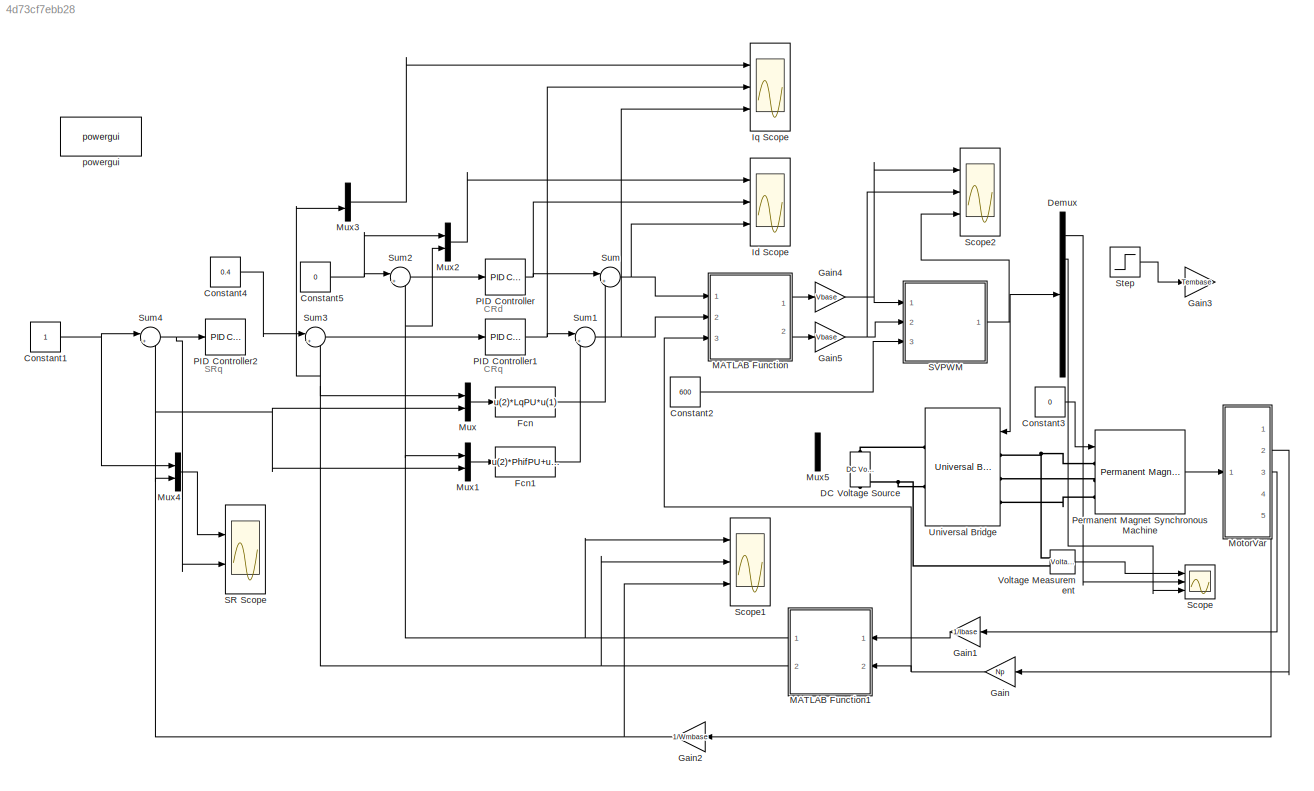
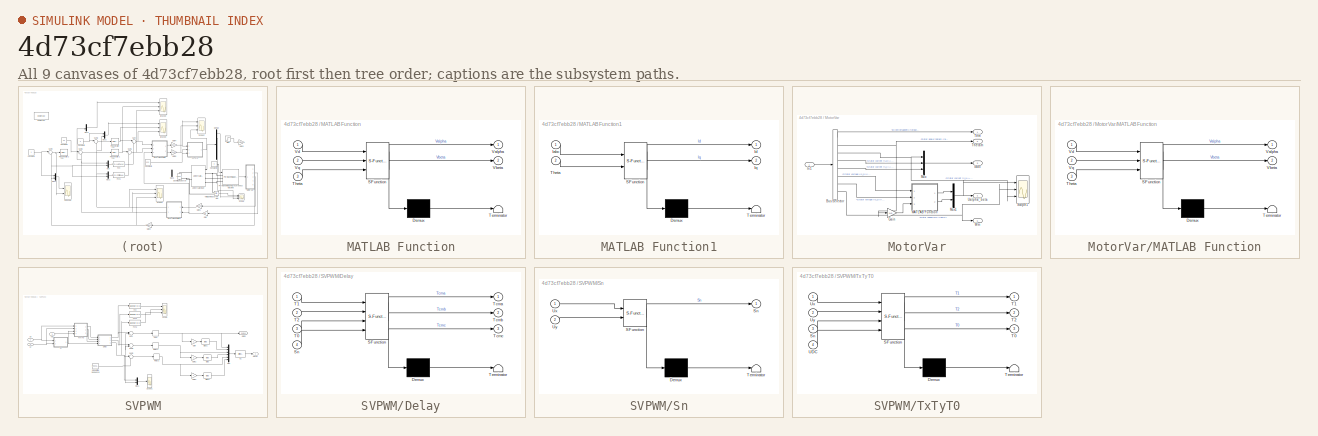
[diagram: thumbnail index - all 9 canvases of the model, root first then tree order]
MODEL slx_4d73cf7ebb28
KIND model
CONFIG AbsTol = auto
CONFIG EnableMultiTasking = off
CONFIG FixedStep = auto
CONFIG InitFcn = run('MotorParamInit_1_5PMSM.m');
CONFIG MaxStep = auto
CONFIG MinStep = auto
CONFIG RelTol = 1e-3
CONFIG SampleTimeConstraint = Unconstrained
CONFIG Solver = VariableStepAuto
CONFIG SolverName = VariableStepAuto
CONFIG StartTime = 0.0
CONFIG StopTime = 0.1
BLOCK [Constant] Constant1
BLOCK [Constant] Constant2
  Value = 600
BLOCK [Constant] Constant3
  Value = 0
BLOCK [Constant] Constant4
  Value = 0.4
BLOCK [Constant] Constant5
  Value = 0
BLOCK [Reference] DC Voltage Source  REF=powerlib/Electrical
Sources/DC Voltage Source
  Ports = [0, 0, 0, 0, 0, 1, 1]
  SourceBlock = powerlib/Electrical\nSources/DC Voltage Source
  SourceProductBaseCode = PS
  SourceProductName = Simscape Electrical
  SourceType = DC Voltage Source
BLOCK [Demux] Demux
  DisplayOption = bar
  Outputs = 6
  Ports = [1, 6]
BLOCK [Fcn] Fcn
  Expr = u(2)*LqPU*u(1)
BLOCK [Fcn] Fcn1
  Expr = u(2)*PhifPU+u(2)*LdPU*u(1)
BLOCK [Gain] Gain
  Gain = Np
  OutDataTypeStr = Inherit: Inherit via internal rule
  ParamDataTypeStr = Inherit: Inherit via internal rule
  SaturateOnIntegerOverflow = off
BLOCK [Gain] Gain1
  Gain = 1/Ibase
  OutDataTypeStr = Inherit: Inherit via internal rule
  ParamDataTypeStr = Inherit: Inherit via internal rule
  SaturateOnIntegerOverflow = off
BLOCK [Gain] Gain2
  Gain = 1/Wmbase
  OutDataTypeStr = Inherit: Inherit via internal rule
  ParamDataTypeStr = Inherit: Inherit via internal rule
  SaturateOnIntegerOverflow = off
BLOCK [Gain] Gain3
  Commented = on
  Gain = Tembase
  OutDataTypeStr = Inherit: Inherit via internal rule
  ParamDataTypeStr = Inherit: Inherit via internal rule
  SaturateOnIntegerOverflow = off
BLOCK [Gain] Gain4
  Gain = Vbase
  OutDataTypeStr = Inherit: Inherit via internal rule
  ParamDataTypeStr = Inherit: Inherit via internal rule
  SaturateOnIntegerOverflow = off
BLOCK [Gain] Gain5
  Gain = Vbase
  OutDataTypeStr = Inherit: Inherit via internal rule
  ParamDataTypeStr = Inherit: Inherit via internal rule
  SaturateOnIntegerOverflow = off
BLOCK [Scope] Id Scope
  Floating = off
  NumInputPorts = 3
  Ports = [3]
  ScopeSpecificationString = Simulink.scopes.TimeScopeBlockCfg('CurrentConfiguration', extmgr.ConfigurationSet(extmgr.Configuration('Core','General UI',true),extmgr.Configuration('Core','Source UI',true),extmgr.Configuration('Sources','WiredSimulink',true,'DataLoggingVariableName','ScopeData3'),extmgr.Configuration('Visuals','Time Domain',true,'SerializedDisplays',{struct('MinYLimReal','-0.06576','MaxYLimReal','0.07024','YLab...<+3066ch>
BLOCK [Scope] Iq Scope
  Floating = off
  NumInputPorts = 3
  Ports = [3]
  ScopeSpecificationString = Simulink.scopes.TimeScopeBlockCfg('CurrentConfiguration', extmgr.ConfigurationSet(extmgr.Configuration('Core','General UI',true),extmgr.Configuration('Core','Source UI',true),extmgr.Configuration('Sources','WiredSimulink',true,'DataLoggingVariableName','ScopeData2'),extmgr.Configuration('Visuals','Time Domain',true,'SerializedDisplays',{struct('MinYLimReal','-0.46773','MaxYLimReal','2.29201','YLab...<+3142ch>
BLOCK [SubSystem] MATLAB Function
  ErrorFcn = Stateflow.Translate.translate
  PermitHierarchicalResolution = ExplicitOnly
  Ports = [3, 2]
  RequestExecContextInheritance = off
  SFBlockType = MATLAB Function
  TreatAsAtomicUnit = on
BLOCK [Demux] MATLAB Function/ Demux 
  Outputs = 1
  Ports = [1, 1]
BLOCK [S-Function] MATLAB Function/ SFunction 
  EnableBusSupport = on
  FunctionName = sf_sfun
  PortCounts = [3 3]
  Ports = [3, 3]
  SFcnIsStateOwnerBlock = off
  SFunctionDeploymentMode = off
  Tag = Stateflow S-Function 2
BLOCK [Terminator] MATLAB Function/ Terminator 
BLOCK [Inport] MATLAB Function/Theta
  IconDisplay = Port number
  Port = 3
BLOCK [Outport] MATLAB Function/Valpha
  IconDisplay = Port number
BLOCK [Outport] MATLAB Function/Vbeta
  IconDisplay = Port number
  Port = 2
BLOCK [Inport] MATLAB Function/Vd
  IconDisplay = Port number
BLOCK [Inport] MATLAB Function/Vq
  IconDisplay = Port number
  Port = 2
BLOCK [SubSystem] MATLAB Function1
  ErrorFcn = Stateflow.Translate.translate
  PermitHierarchicalResolution = ExplicitOnly
  Ports = [2, 2]
  RequestExecContextInheritance = off
  SFBlockType = MATLAB Function
  TreatAsAtomicUnit = on
BLOCK [Demux] MATLAB Function1/ Demux 
  Outputs = 1
  Ports = [1, 1]
BLOCK [S-Function] MATLAB Function1/ SFunction 
  EnableBusSupport = on
  FunctionName = sf_sfun
  PortCounts = [2 3]
  Ports = [2, 3]
  SFcnIsStateOwnerBlock = off
  SFunctionDeploymentMode = off
  Tag = Stateflow S-Function 6
BLOCK [Terminator] MATLAB Function1/ Terminator 
BLOCK [Inport] MATLAB Function1/Iabc
  IconDisplay = Port number
BLOCK [Outport] MATLAB Function1/Id
  IconDisplay = Port number
BLOCK [Outport] MATLAB Function1/Iq
  IconDisplay = Port number
  Port = 2
BLOCK [Inport] MATLAB Function1/Theta
  IconDisplay = Port number
  Port = 2
BLOCK [SubSystem] MotorVar
  Ports = [1, 5]
  RequestExecContextInheritance = off
BLOCK [BusSelector] MotorVar/Bus Selector
  OutputAsBus = off
  OutputSignals = Electromagnetic torque Te (N*m),Rotor angle thetam (rad),Stator current is_a (A),Stator current is_b (A),Stator current is_c (A),Stator voltage Vs_d (V),Stator voltage Vs_q (V),Rotor speed wm (rad/s)
  Ports = [1, 8]
BLOCK [Gain] MotorVar/Gain
  Gain = Np
  OutDataTypeStr = Inherit: Inherit via internal rule
  ParamDataTypeStr = Inherit: Inherit via internal rule
  SaturateOnIntegerOverflow = off
BLOCK [Outport] MotorVar/Iabc
  IconDisplay = Port number
  Port = 3
BLOCK [Inport] MotorVar/In1
  IconDisplay = Port number
BLOCK [SubSystem] MotorVar/MATLAB Function
  ErrorFcn = Stateflow.Translate.translate
  PermitHierarchicalResolution = ExplicitOnly
  Ports = [3, 2]
  RequestExecContextInheritance = off
  SFBlockType = MATLAB Function
  TreatAsAtomicUnit = on
BLOCK [Demux] MotorVar/MATLAB Function/ Demux 
  Outputs = 1
  Ports = [1, 1]
BLOCK [S-Function] MotorVar/MATLAB Function/ SFunction 
  EnableBusSupport = on
  FunctionName = sf_sfun
  PortCounts = [3 3]
  Ports = [3, 3]
  SFcnIsStateOwnerBlock = off
  SFunctionDeploymentMode = off
  Tag = Stateflow S-Function 5
BLOCK [Terminator] MotorVar/MATLAB Function/ Terminator 
BLOCK [Inport] MotorVar/MATLAB Function/Theta
  IconDisplay = Port number
  Port = 3
BLOCK [Outport] MotorVar/MATLAB Function/Valpha
  IconDisplay = Port number
BLOCK [Outport] MotorVar/MATLAB Function/Vbeta
  IconDisplay = Port number
  Port = 2
BLOCK [Inport] MotorVar/MATLAB Function/Vd
  IconDisplay = Port number
BLOCK [Inport] MotorVar/MATLAB Function/Vq
  IconDisplay = Port number
  Port = 2
BLOCK [Mux] MotorVar/Mux
  DisplayOption = bar
  Inputs = 3
  Ports = [3, 1]
BLOCK [Mux] MotorVar/Mux1
  DisplayOption = bar
  Inputs = 2
  Ports = [2, 1]
BLOCK [Scope] MotorVar/Scope1
  Floating = off
  NumInputPorts = 3
  Ports = [3]
  ScopeSpecificationString = Simulink.scopes.TimeScopeBlockCfg('CurrentConfiguration', extmgr.ConfigurationSet(extmgr.Configuration('Core','General UI',true),extmgr.Configuration('Core','Source UI',true),extmgr.Configuration('Sources','WiredSimulink',true,'DataLoggingVariableName','ScopeData4'),extmgr.Configuration('Visuals','Time Domain',true,'SerializedDisplays',{struct('MinYLimReal','-500.00276','MaxYLimReal','500.0026','Y...<+3269ch>
BLOCK [Outport] MotorVar/Tem
  IconDisplay = Port number
BLOCK [Outport] MotorVar/Thetam
  IconDisplay = Port number
  Port = 2
BLOCK [Outport] MotorVar/Ualpha_beta
  IconDisplay = Port number
  Port = 4
BLOCK [Outport] MotorVar/Wm
  IconDisplay = Port number
  Port = 5
BLOCK [Mux] Mux
  DisplayOption = bar
  Inputs = 2
  Ports = [2, 1]
BLOCK [Mux] Mux1
  DisplayOption = bar
  Inputs = 2
  Ports = [2, 1]
BLOCK [Mux] Mux2
  DisplayOption = bar
  Inputs = 2
  Ports = [2, 1]
BLOCK [Mux] Mux3
  DisplayOption = bar
  Inputs = 2
  Ports = [2, 1]
BLOCK [Mux] Mux4
  DisplayOption = bar
  Inputs = 2
  Ports = [2, 1]
BLOCK [Mux] Mux5
  DisplayOption = bar
  Inputs = 2
  Ports = [2, 1]
BLOCK [Reference] PID Controller  REF=simulink/Continuous/PID Controller
  Ports = [1, 1]
  SourceBlock = simulink/Continuous/PID Controller
  SourceProductBaseCode = SL
  SourceProductName = Simulink
  SourceType = PID 1dof
BLOCK [Reference] PID Controller1  REF=simulink/Continuous/PID Controller
  Ports = [1, 1]
  SourceBlock = simulink/Continuous/PID Controller
  SourceProductBaseCode = SL
  SourceProductName = Simulink
  SourceType = PID 1dof
BLOCK [Reference] PID Controller2  REF=simulink/Continuous/PID Controller
  Ports = [1, 1]
  SourceBlock = simulink/Continuous/PID Controller
  SourceProductBaseCode = SL
  SourceProductName = Simulink
  SourceType = PID 1dof
BLOCK [Reference] Permanent Magnet Synchronous Machine  REF=powerlib/Machines/Permanent Magnet
Synchronous Machine
  Ports = [1, 1, 0, 0, 0, 3]
  SourceBlock = powerlib/Machines/Permanent Magnet\nSynchronous Machine
  SourceProductBaseCode = PS
  SourceProductName = Simscape Electrical
  SourceType = Permanent Magnet Synchronous Machine
BLOCK [Scope] SR Scope
  Floating = off
  NumInputPorts = 2
  Ports = [2]
  ScopeSpecificationString = Simulink.scopes.TimeScopeBlockCfg('CurrentConfiguration', extmgr.ConfigurationSet(extmgr.Configuration('Core','General UI',true,'FigureColor',[0 0 0]),extmgr.Configuration('Core','Source UI',true),extmgr.Configuration('Sources','WiredSimulink',true,'DataLoggingVariableName','VerifySRData','DataLogging',true),extmgr.Configuration('Visuals','Time Domain',true,'SerializedDisplays',{struct('MinYLimRea...<+2383ch>
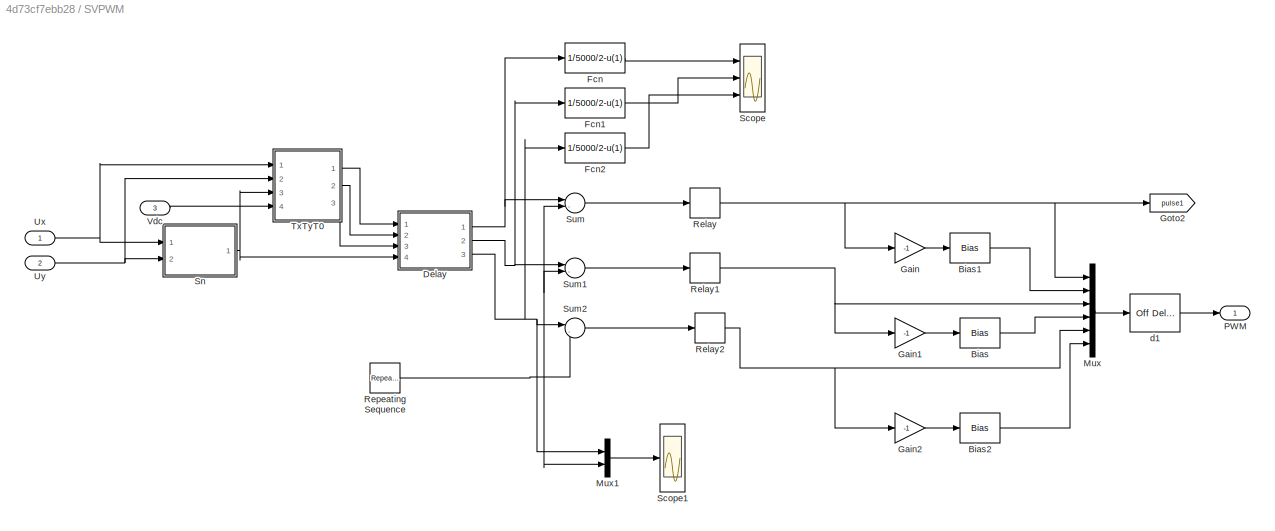
BLOCK [SubSystem] SVPWM
  Ports = [3, 1]
  RequestExecContextInheritance = off
BLOCK [Bias] SVPWM/Bias
  Bias = 1
  SaturateOnIntegerOverflow = off
BLOCK [Bias] SVPWM/Bias1
  Bias = 1
  SaturateOnIntegerOverflow = off
BLOCK [Bias] SVPWM/Bias2
  Bias = 1
  SaturateOnIntegerOverflow = off
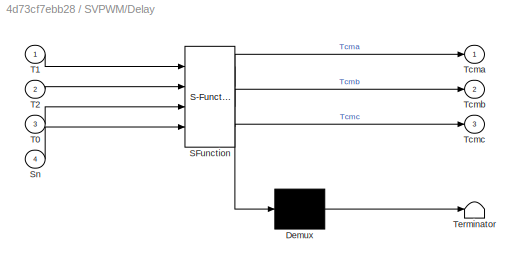
BLOCK [SubSystem] SVPWM/Delay
  ErrorFcn = Stateflow.Translate.translate
  PermitHierarchicalResolution = ExplicitOnly
  Ports = [4, 3]
  RequestExecContextInheritance = off
  SFBlockType = MATLAB Function
  TreatAsAtomicUnit = on
BLOCK [Demux] SVPWM/Delay/ Demux 
  Outputs = 1
  Ports = [1, 1]
BLOCK [S-Function] SVPWM/Delay/ SFunction 
  EnableBusSupport = on
  FunctionName = sf_sfun
  PortCounts = [4 4]
  Ports = [4, 4]
  SFcnIsStateOwnerBlock = off
  SFunctionDeploymentMode = off
  Tag = Stateflow S-Function 4
BLOCK [Terminator] SVPWM/Delay/ Terminator 
BLOCK [Inport] SVPWM/Delay/Sn
  IconDisplay = Port number
  Port = 4
BLOCK [Inport] SVPWM/Delay/T0
  IconDisplay = Port number
  Port = 3
BLOCK [Inport] SVPWM/Delay/T1
  IconDisplay = Port number
BLOCK [Inport] SVPWM/Delay/T2
  IconDisplay = Port number
  Port = 2
BLOCK [Outport] SVPWM/Delay/Tcma
  IconDisplay = Port number
BLOCK [Outport] SVPWM/Delay/Tcmb
  IconDisplay = Port number
  Port = 2
BLOCK [Outport] SVPWM/Delay/Tcmc
  IconDisplay = Port number
  Port = 3
BLOCK [Fcn] SVPWM/Fcn
  Expr = 1/5000/2-u(1)
BLOCK [Fcn] SVPWM/Fcn1
  Expr = 1/5000/2-u(1)
BLOCK [Fcn] SVPWM/Fcn2
  Expr = 1/5000/2-u(1)
BLOCK [Gain] SVPWM/Gain
  Gain = -1
  OutDataTypeStr = Inherit: Inherit via internal rule
  ParamDataTypeStr = Inherit: Inherit via internal rule
  SaturateOnIntegerOverflow = off
BLOCK [Gain] SVPWM/Gain1
  Gain = -1
  OutDataTypeStr = Inherit: Inherit via internal rule
  ParamDataTypeStr = Inherit: Inherit via internal rule
  SaturateOnIntegerOverflow = off
BLOCK [Gain] SVPWM/Gain2
  Gain = -1
  OutDataTypeStr = Inherit: Inherit via internal rule
  ParamDataTypeStr = Inherit: Inherit via internal rule
  SaturateOnIntegerOverflow = off
BLOCK [Goto] SVPWM/Goto2
  Commented = on
  GotoTag = pulse1
  TagVisibility = global
BLOCK [Mux] SVPWM/Mux
  DisplayOption = bar
  Inputs = 6
  Ports = [6, 1]
BLOCK [Mux] SVPWM/Mux1
  DisplayOption = bar
  Inputs = 2
  Ports = [2, 1]
BLOCK [Outport] SVPWM/PWM
  IconDisplay = Port number
BLOCK [Relay] SVPWM/Relay
  OffSwitchValue = 0
  OnSwitchValue = 0
BLOCK [Relay] SVPWM/Relay1
  OffSwitchValue = 0
  OnSwitchValue = 0
BLOCK [Relay] SVPWM/Relay2
  OffSwitchValue = 0
  OnSwitchValue = 0
BLOCK [Reference] SVPWM/Repeating Sequence  REF=simulink/Sources/Repeating
Sequence
  Ports = [0, 1]
  SourceBlock = simulink/Sources/Repeating\nSequence
  SourceProductBaseCode = SL
  SourceProductName = Simulink
  SourceType = Repeating table
BLOCK [Scope] SVPWM/Scope
  Floating = off
  NumInputPorts = 3
  Ports = [3]
  ScopeSpecificationString = Simulink.scopes.TimeScopeBlockCfg('CurrentConfiguration', extmgr.ConfigurationSet(extmgr.Configuration('Core','General UI',true),extmgr.Configuration('Core','Source UI',true),extmgr.Configuration('Sources','WiredSimulink',true,'DataLoggingVariableName','ScopeData5'),extmgr.Configuration('Visuals','Time Domain',true,'SerializedDisplays',{struct('MinYLimReal','-0.00000','MaxYLimReal','0.0001','YLabe...<+2838ch>
BLOCK [Scope] SVPWM/Scope1
  Floating = off
  NumInputPorts = 1
  Ports = [1]
  ScopeSpecificationString = Simulink.scopes.TimeScopeBlockCfg('CurrentConfiguration', extmgr.ConfigurationSet(extmgr.Configuration('Core','General UI',true),extmgr.Configuration('Core','Source UI',true),extmgr.Configuration('Sources','WiredSimulink',true,'DataLoggingVariableName','ScopeData1'),extmgr.Configuration('Visuals','Time Domain',true,'SerializedDisplays',{struct('MinYLimReal','-0.00002','MaxYLimReal','0.0001','YLabe...<+1786ch>
BLOCK [SubSystem] SVPWM/Sn
  ErrorFcn = Stateflow.Translate.translate
  PermitHierarchicalResolution = ExplicitOnly
  Ports = [2, 1]
  RequestExecContextInheritance = off
  SFBlockType = MATLAB Function
  TreatAsAtomicUnit = on
BLOCK [Demux] SVPWM/Sn/ Demux 
  Outputs = 1
  Ports = [1, 1]
BLOCK [S-Function] SVPWM/Sn/ SFunction 
  EnableBusSupport = on
  FunctionName = sf_sfun
  PortCounts = [2 2]
  Ports = [2, 2]
  SFcnIsStateOwnerBlock = off
  SFunctionDeploymentMode = off
  Tag = Stateflow S-Function 1
BLOCK [Terminator] SVPWM/Sn/ Terminator 
BLOCK [Outport] SVPWM/Sn/Sn
  IconDisplay = Port number
BLOCK [Inport] SVPWM/Sn/Ux
  IconDisplay = Port number
BLOCK [Inport] SVPWM/Sn/Uy
  IconDisplay = Port number
  Port = 2
BLOCK [Sum] SVPWM/Sum
  IconShape = round
  InputSameDT = off
  Inputs = |-+
  OutDataTypeStr = Inherit: Inherit via internal rule
  Ports = [2, 1]
  SaturateOnIntegerOverflow = off
BLOCK [Sum] SVPWM/Sum1
  IconShape = round
  InputSameDT = off
  Inputs = |-+
  OutDataTypeStr = Inherit: Inherit via internal rule
  Ports = [2, 1]
  SaturateOnIntegerOverflow = off
BLOCK [Sum] SVPWM/Sum2
  IconShape = round
  InputSameDT = off
  Inputs = |-+
  OutDataTypeStr = Inherit: Inherit via internal rule
  Ports = [2, 1]
  SaturateOnIntegerOverflow = off
BLOCK [SubSystem] SVPWM/TxTyT0
  ErrorFcn = Stateflow.Translate.translate
  PermitHierarchicalResolution = ExplicitOnly
  Ports = [4, 3]
  RequestExecContextInheritance = off
  SFBlockType = MATLAB Function
  TreatAsAtomicUnit = on
BLOCK [Demux] SVPWM/TxTyT0/ Demux 
  Outputs = 1
  Ports = [1, 1]
BLOCK [S-Function] SVPWM/TxTyT0/ SFunction 
  EnableBusSupport = on
  FunctionName = sf_sfun
  PortCounts = [4 4]
  Ports = [4, 4]
  SFcnIsStateOwnerBlock = off
  SFunctionDeploymentMode = off
  Tag = Stateflow S-Function 3
BLOCK [Terminator] SVPWM/TxTyT0/ Terminator 
BLOCK [Inport] SVPWM/TxTyT0/Sn
  IconDisplay = Port number
  Port = 3
BLOCK [Outport] SVPWM/TxTyT0/T0
  IconDisplay = Port number
  Port = 3
BLOCK [Outport] SVPWM/TxTyT0/T1
  IconDisplay = Port number
BLOCK [Outport] SVPWM/TxTyT0/T2
  IconDisplay = Port number
  Port = 2
BLOCK [Inport] SVPWM/TxTyT0/UDC
  IconDisplay = Port number
  Port = 4
BLOCK [Inport] SVPWM/TxTyT0/Ux
  IconDisplay = Port number
BLOCK [Inport] SVPWM/TxTyT0/Uy
  IconDisplay = Port number
  Port = 2
BLOCK [Inport] SVPWM/Ux
  IconDisplay = Port number
BLOCK [Inport] SVPWM/Uy
  IconDisplay = Port number
  Port = 2
BLOCK [Inport] SVPWM/Vdc
  IconDisplay = Port number
  Port = 3
BLOCK [Reference] SVPWM/d1  REF=powerlib_extras/Discrete 
Control Blocks/Discrete
On//Off Delay
  Ports = [1, 1]
  SourceBlock = powerlib_extras/Discrete \nControl Blocks/Discrete\nOn//Off Delay
  SourceProductBaseCode = PS
  SourceProductName = Simscape Electrical
  SourceType = Discrete On/Off Delay
BLOCK [Scope] Scope
  Floating = off
  NumInputPorts = 3
  Ports = [3]
  ScopeSpecificationString = Simulink.scopes.TimeScopeBlockCfg('CurrentConfiguration', extmgr.ConfigurationSet(extmgr.Configuration('Core','General UI',true),extmgr.Configuration('Core','Source UI',true),extmgr.Configuration('Sources','WiredSimulink',true,'DataLoggingVariableName','ScopeData2'),extmgr.Configuration('Visuals','Time Domain',true,'SerializedDisplays',{struct('MinYLimReal','-75.00807','MaxYLimReal','675.00819','Y...<+3159ch>
BLOCK [Scope] Scope1
  Floating = off
  NumInputPorts = 3
  Ports = [3]
  ScopeSpecificationString = Simulink.scopes.TimeScopeBlockCfg('CurrentConfiguration', extmgr.ConfigurationSet(extmgr.Configuration('Core','General UI',true),extmgr.Configuration('Core','Source UI',true),extmgr.Configuration('Sources','WiredSimulink',true,'DataLoggingVariableName','ScopeData1'),extmgr.Configuration('Visuals','Time Domain',true,'SerializedDisplays',{struct('MinYLimReal','-0.0512','MaxYLimReal','0.04931','YLabe...<+2765ch>
BLOCK [Scope] Scope2
  Floating = off
  NumInputPorts = 3
  Ports = [3]
  ScopeSpecificationString = Simulink.scopes.TimeScopeBlockCfg('CurrentConfiguration', extmgr.ConfigurationSet(extmgr.Configuration('Core','General UI',true),extmgr.Configuration('Core','Source UI',true),extmgr.Configuration('Sources','WiredSimulink',true),extmgr.Configuration('Visuals','Time Domain',true,'SerializedDisplays',{struct('MinYLimReal','-1305.11571','MaxYLimReal','1309.68469','YLabelReal','','MinYLimMag','  0.0000...<+3807ch>
BLOCK [Step] Step
  After = 0.5
  Commented = on
  SampleTime = 0
BLOCK [Sum] Sum
  IconShape = round
  InputSameDT = off
  Inputs = |+-
  OutDataTypeStr = Inherit: Inherit via internal rule
  Ports = [2, 1]
  SaturateOnIntegerOverflow = off
BLOCK [Sum] Sum1
  IconShape = round
  InputSameDT = off
  Inputs = |++
  OutDataTypeStr = Inherit: Inherit via internal rule
  Ports = [2, 1]
  SaturateOnIntegerOverflow = off
BLOCK [Sum] Sum2
  IconShape = round
  InputSameDT = off
  Inputs = |+-
  OutDataTypeStr = Inherit: Inherit via internal rule
  Ports = [2, 1]
  SaturateOnIntegerOverflow = off
BLOCK [Sum] Sum3
  IconShape = round
  InputSameDT = off
  Inputs = |+-
  OutDataTypeStr = Inherit: Inherit via internal rule
  Ports = [2, 1]
  SaturateOnIntegerOverflow = off
BLOCK [Sum] Sum4
  IconShape = round
  InputSameDT = off
  Inputs = |+-
  OutDataTypeStr = Inherit: Inherit via internal rule
  Ports = [2, 1]
  SaturateOnIntegerOverflow = off
BLOCK [Reference] Universal Bridge  REF=powerlib/Power
Electronics/Universal Bridge
  Ports = [1, 0, 0, 0, 0, 3, 2]
  SourceBlock = powerlib/Power\nElectronics/Universal Bridge
  SourceProductBaseCode = PS
  SourceProductName = Simscape Electrical
  SourceType = Universal Bridge
BLOCK [Reference] Voltage Measurement  REF=powerlib/Measurements/Voltage Measurement
  Ports = [0, 1, 0, 0, 0, 2]
  SourceBlock = powerlib/Measurements/Voltage Measurement
  SourceProductBaseCode = PS
  SourceProductName = Simscape Electrical
  SourceType = Voltage Measurement
  UserDataPersistent = on
BLOCK [Reference] powergui  REF=powerlib/powergui
  Ports = []
  Priority = 1
  SourceBlock = powerlib/powergui
  SourceProductBaseCode = PS
  SourceProductName = Simscape Electrical
  SourceType = PSB option menu block
ANNOTATION (root): CRd
ANNOTATION (root): CRq
ANNOTATION (root): SRq
NET Constant1:1 -> Mux4:1, Sum4:1
LINE Constant2:1 -> SVPWM:3
LINE Constant3:1 -> Permanent Magnet Synchronous Machine:1
LINE Constant4:1 -> Sum3:1
NET Constant5:1 -> Mux2:1, Sum2:1
LINE Demux:1 -> Scope:2
LINE Demux:2 -> Scope:3
LINE Fcn1:1 -> Sum1:2
LINE Fcn:1 -> Sum:2
LINE Gain1:1 -> MATLAB Function1:1
NET Gain2:1 -> Mux1:2, Mux4:2, Mux:2, Scope1:3, Sum4:2
NET Gain4:1 -> SVPWM:1, Scope2:1
NET Gain5:1 -> SVPWM:2, Scope2:2
NET Gain:1 -> MATLAB Function1:2, MATLAB Function:3
NET MATLAB Function1:1 -> Mux1:1, Mux2:2, Scope1:1, Sum2:2
NET MATLAB Function1:2 -> Mux3:2, Mux:1, Scope1:2, Sum3:2
LINE MATLAB Function:1 -> Gain4:1
LINE MATLAB Function:2 -> Gain5:1
LINE MotorVar/Bus Selector:1 -> MotorVar/Tem:1
NET MotorVar/Bus Selector:2 -> MotorVar/Gain:1, MotorVar/Thetam:1
NET MotorVar/Bus Selector:3 -> MotorVar/Mux:1, MotorVar/Scope1:3
LINE MotorVar/Bus Selector:4 -> MotorVar/Mux:2
LINE MotorVar/Bus Selector:5 -> MotorVar/Mux:3
LINE MotorVar/Bus Selector:6 -> MotorVar/MATLAB Function:1
LINE MotorVar/Bus Selector:7 -> MotorVar/MATLAB Function:2
NET MotorVar/Bus Selector:8 -> MotorVar/Scope1:2, MotorVar/Wm:1
LINE MotorVar/Gain:1 -> MotorVar/MATLAB Function:3
LINE MotorVar/In1:1 -> MotorVar/Bus Selector:1
LINE MotorVar/MATLAB Function:1 -> MotorVar/Mux1:1
LINE MotorVar/MATLAB Function:2 -> MotorVar/Mux1:2
NET MotorVar/Mux1:1 -> MotorVar/Scope1:1, MotorVar/Ualpha_beta:1
LINE MotorVar/Mux:1 -> MotorVar/Iabc:1
LINE MotorVar:2 -> Gain:1
LINE MotorVar:3 -> Gain1:1
LINE MotorVar:5 -> Gain2:1
LINE Mux1:1 -> Fcn1:1
LINE Mux2:1 -> Id Scope:1
LINE Mux3:1 -> Iq Scope:1
LINE Mux4:1 -> SR Scope:1
LINE Mux:1 -> Fcn:1
NET PID Controller1:1 -> Iq Scope:2, Sum1:1
NET PID Controller:1 -> Id Scope:2, Sum:1
LINE Permanent Magnet Synchronous Machine:1 -> MotorVar:1
LINE SVPWM/Bias1:1 -> SVPWM/Mux:2
LINE SVPWM/Bias2:1 -> SVPWM/Mux:6
LINE SVPWM/Bias:1 -> SVPWM/Mux:4
NET SVPWM/Delay:1 -> SVPWM/Fcn:1, SVPWM/Sum:1
NET SVPWM/Delay:2 -> SVPWM/Fcn1:1, SVPWM/Sum1:1
NET SVPWM/Delay:3 -> SVPWM/Fcn2:1, SVPWM/Mux1:1, SVPWM/Sum2:1
LINE SVPWM/Fcn1:1 -> SVPWM/Scope:2
LINE SVPWM/Fcn2:1 -> SVPWM/Scope:3
LINE SVPWM/Fcn:1 -> SVPWM/Scope:1
LINE SVPWM/Gain1:1 -> SVPWM/Bias:1
LINE SVPWM/Gain2:1 -> SVPWM/Bias2:1
LINE SVPWM/Gain:1 -> SVPWM/Bias1:1
LINE SVPWM/Mux1:1 -> SVPWM/Scope1:1
LINE SVPWM/Mux:1 -> SVPWM/d1:1
NET SVPWM/Relay1:1 -> SVPWM/Gain1:1, SVPWM/Mux:3
NET SVPWM/Relay2:1 -> SVPWM/Gain2:1, SVPWM/Mux:5
NET SVPWM/Relay:1 -> SVPWM/Gain:1, SVPWM/Goto2:1, SVPWM/Mux:1
NET SVPWM/Repeating Sequence:1 -> SVPWM/Mux1:2, SVPWM/Sum1:2, SVPWM/Sum2:2, SVPWM/Sum:2
NET SVPWM/Sn:1 -> SVPWM/Delay:4, SVPWM/TxTyT0:3
LINE SVPWM/Sum1:1 -> SVPWM/Relay1:1
LINE SVPWM/Sum2:1 -> SVPWM/Relay2:1
LINE SVPWM/Sum:1 -> SVPWM/Relay:1
LINE SVPWM/TxTyT0:1 -> SVPWM/Delay:1
LINE SVPWM/TxTyT0:2 -> SVPWM/Delay:2
LINE SVPWM/TxTyT0:3 -> SVPWM/Delay:3
NET SVPWM/Ux:1 -> SVPWM/Sn:1, SVPWM/TxTyT0:1
NET SVPWM/Uy:1 -> SVPWM/Sn:2, SVPWM/TxTyT0:2
LINE SVPWM/Vdc:1 -> SVPWM/TxTyT0:4
LINE SVPWM/d1:1 -> SVPWM/PWM:1
NET SVPWM:1 -> Demux:1, Scope2:3, Universal Bridge:1
LINE Step:1 -> Gain3:1
NET Sum1:1 -> Iq Scope:3, MATLAB Function:2
LINE Sum2:1 -> PID Controller:1
LINE Sum3:1 -> PID Controller1:1
NET Sum4:1 -> PID Controller2:1, SR Scope:2
NET Sum:1 -> Id Scope:3, MATLAB Function:1
LINE Voltage Measurement:1 -> Scope:1
PNET net1: DC Voltage Source:LConn1 -- Universal Bridge:RConn2 -- Voltage Measurement:LConn2
PLINE DC Voltage Source:RConn1 -- Universal Bridge:RConn1
PNET net2: Permanent Magnet Synchronous Machine:LConn1 -- Universal Bridge:LConn1 -- Voltage Measurement:LConn1
PLINE Permanent Magnet Synchronous Machine:LConn2 -- Universal Bridge:LConn2
PLINE Permanent Magnet Synchronous Machine:LConn3 -- Universal Bridge:LConn3
note: NET lines group one-source signal fan-out (src -> all destinations, sorted); 1:1 wires keep LINE; PNET lines group multi-terminal physical nets as a canonical sorted terminal list (undirected conserving connections); 2-terminal nets keep the pairwise PLINE form
CHART SVPWM/Sn states=1 transitions=1
  STATE_LABEL 'eML_blk_kernel()'
  STATE_LABEL 'SCRIPT:\nfunction Sn = S(Ux,Uy)\ntheta=atan2(Uy,Ux)*180/pi;\nif theta>=0&&theta<60\n    Sn=1;\nelseif theta>=60&&theta<120\n    Sn=2;\nelseif theta>=120&&theta<180\n    Sn=3;\nelseif theta>=-180&&theta<-120\n    Sn=4;\nelseif theta>=-120&&theta<-60\n    Sn=5;\nelse Sn=6;\nend'
CHART MATLAB Function states=1 transitions=1
  STATE_LABEL 'eML_blk_kernel()'
  STATE_LABEL 'SCRIPT:\nfunction [Valpha, Vbeta] = fcn(Vd, Vq, Theta)\n%#codegen\n\nValpha = Vd*cos(Theta) - Vq*sin(Theta);\nVbeta  = Vd*sin(Theta) + Vq*cos(Theta);'
CHART SVPWM/TxTyT0 states=1 transitions=1
  STATE_LABEL 'eML_blk_kernel()'
  STATE_LABEL 'SCRIPT:\nfunction [T1,T2,T0]=T(Ux,Uy,Sn,UDC)\nTs=1/5000;\nUdc=UDC;\n\nX=sqrt(3)*Ts/Udc*Uy;\nY=sqrt(3)*Ts/2/Udc*(sqrt(3)*Ux+Uy);\nZ=sqrt(3)*Ts/2/Udc*(-sqrt(3)*Ux+Uy);\n\nif Sn==1\n    T1=-Z;T2=X;\nelseif Sn==2;\n    T1=Z;T2=Y;\nelseif Sn==3;\n    T1=X;T2=-Y;\nelseif Sn==4;\n    T1=-X;T2=Z;\nelseif Sn==5;\n    T1=-Y;T2=-Z;\nelse T1=Y;T2=-X;\nend\n    \nif T1+T2>Ts\n    a=T1;b=T2;\n    T1=a*Ts/(a+b);\n    T2=b*Ts/(a+b);\nend\n...<+32ch>'
CHART SVPWM/Delay states=1 transitions=1
  STATE_LABEL 'eML_blk_kernel()'
  STATE_LABEL 'SCRIPT:\nfunction [Tcma,Tcmb,Tcmc]=D(T1,T2,T0,Sn)\nT=1/5000;\nton1=0.25*T0;\nton2=ton1+T1/2;\nton3=ton2+T2/2;\nif Sn==1\n    Tcma=ton1;Tcmb=ton2;Tcmc=ton3;\nelseif Sn==2;\n    Tcma=ton2;Tcmb=ton1;Tcmc=ton3;\nelseif Sn==3;\n    Tcma=ton3;Tcmb=ton1;Tcmc=ton2;\nelseif Sn==4;\n    Tcma=ton3;Tcmb=ton2;Tcmc=ton1;\nelseif Sn==5;\n    Tcma=ton2;Tcmb=ton3;Tcmc=ton1;\nelse Tcma=ton1;Tcmb=ton3;Tcmc=ton2;\nend\n        \n      ...<+3ch>'
CHART MotorVar/MATLAB Function states=1 transitions=1
  STATE_LABEL 'eML_blk_kernel()'
  STATE_LABEL 'SCRIPT:\nfunction [Valpha, Vbeta] = fcn(Vd, Vq, Theta)\n%#codegen\n\nValpha = Vd*cos(Theta) - Vq*sin(Theta);\nVbeta  = Vd*sin(Theta) + Vq*cos(Theta);'
CHART MATLAB Function1 states=1 transitions=1
  STATE_LABEL 'eML_blk_kernel()'
  STATE_LABEL 'SCRIPT:\nfunction [Id, Iq] = fcn(Iabc,Theta)\n%#codegen\n\nId =  Iabc(1)*cos(Theta) + Iabc(2)*cos(Theta-2*pi/3) + Iabc(3)*cos(Theta+2*pi/3);\nIq  = -Iabc(1)*sin(Theta) - Iabc(2)*sin(Theta-2*pi/3) - Iabc(3)*sin(Theta+2*pi/3);\nId = Id*2/3;\nIq = Iq*2/3;'
